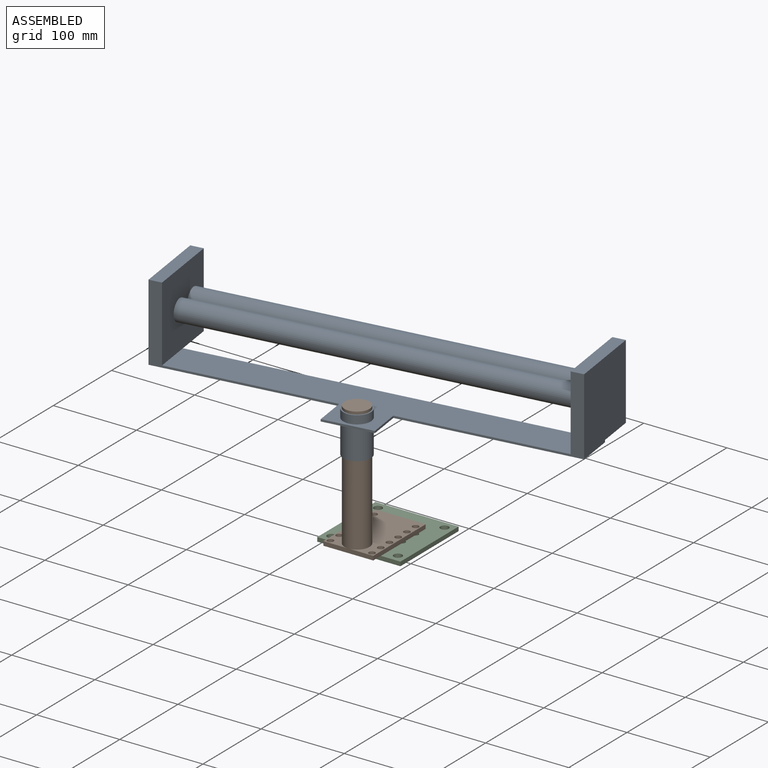
[diagram: assembled view]
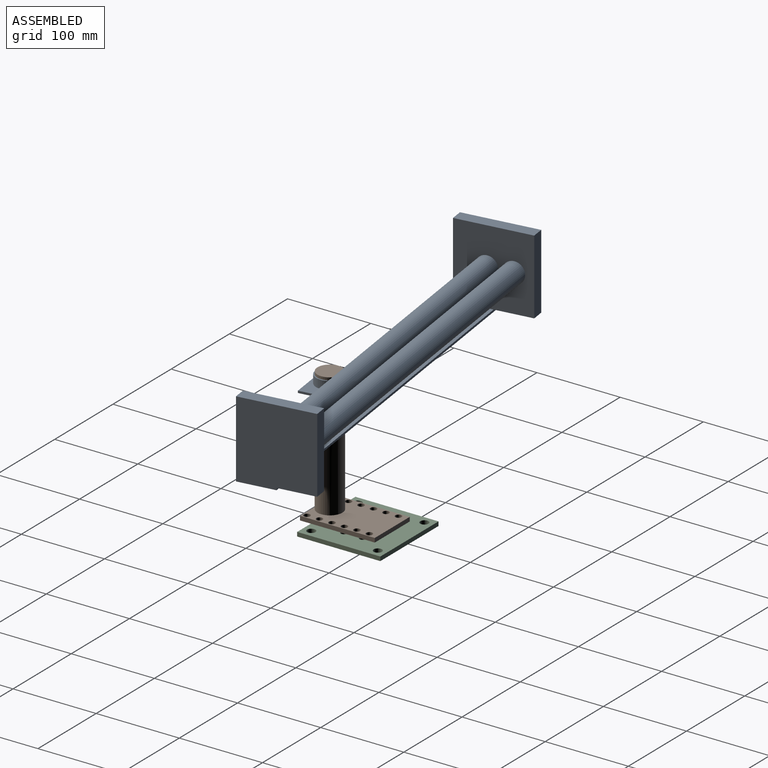
[diagram: assembled view, second angle]
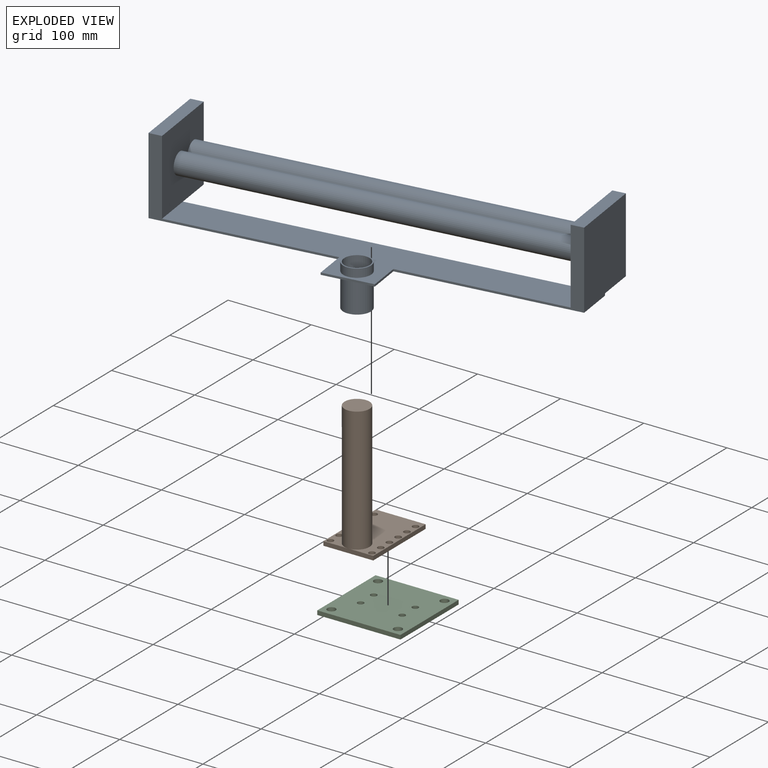
[diagram: exploded view]
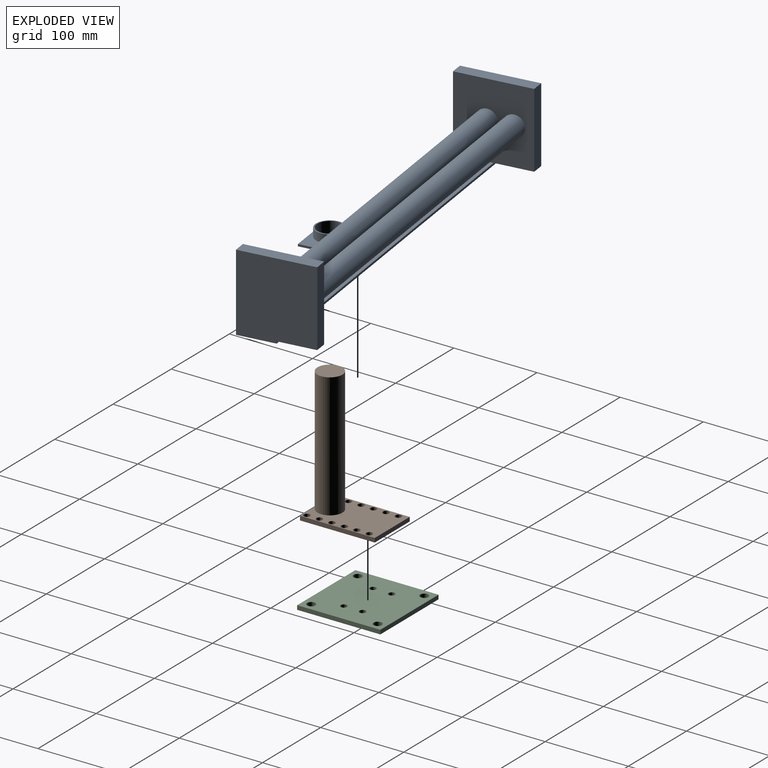
[diagram: exploded view, second angle]
ASSEMBLY  parts=3 mates=2
PART A: 25 faces, bbox 482.6x130x130 mm
  f0: plane 452.6x85mm, normal (0,0,1), area 21911.7mm2, adj f2,f3,f4,f5,f6,f9,f11,f15
  f1: plane 92.5x90mm, normal (-1,0,0), area 8212.5mm2, adj f2,f9,f10,f12,f13,f14
  f2: plane 211.3x92.5mm, normal (0,-1,0), area 1878.2mm2, adj f0,f1,f3,f10,f11,f13
  f3: plane 40x2.5mm, normal (-1,0,0), area 100mm2, adj f0,f2,f4,f10
  f4: plane 60x2.5mm, normal (0,-1,0), area 150mm2, adj f0,f3,f5,f10
  f5: plane 40x2.5mm, normal (1,0,0), area 100mm2, adj f0,f4,f6,f10
  f6: plane 211.3x92.5mm, normal (0,-1,0), area 1878.2mm2, adj f0,f5,f7,f10,f15,f17
  f7: plane 92.5x90mm, normal (1,0,0), area 8212.5mm2, adj f6,f9,f10,f16,f17,f18
  f8: cylinder r=15mm len=50mm, axis (0,0,-1), area 4712.4mm2, adj f22,f24
  f9: plane 482.6x2.5mm, normal (0,1,0), area 1206.5mm2, adj f0,f1,f7,f10,f14,f18
  f10: plane 482.6x85mm, normal (0,0,-1), area 23261.7mm2, adj f1,f2,f3,f4,f5,f6,f7,f9
  f11: plane 90x90mm, normal (1,0,0), area 7118.3mm2, adj f0,f2,f12,f13,f14,f19,f20
  f12: plane 90x15mm, normal (0,1,0), area 1350mm2, adj f1,f11,f13,f14
  f13: plane 90x15mm, normal (0,0,1), area 1350mm2, adj f1,f2,f11,f12
  f14: plane 45x15mm, normal (0,0,-1), area 675mm2, adj f1,f9,f11,f12
  f15: plane 90x90mm, normal (-1,0,0), area 7118.3mm2, adj f0,f6,f16,f17,f18,f19,f20
  f16: plane 90x15mm, normal (0,1,0), area 1350mm2, adj f7,f15,f17,f18
  f17: plane 90x15mm, normal (0,0,1), area 1350mm2, adj f6,f7,f15,f16
  f18: plane 45x15mm, normal (0,0,-1), area 675mm2, adj f7,f9,f15,f16
  f19: cylinder r=12.5mm len=452.6mm, axis (-1,0,0), area 35547.1mm2, adj f11,f15
  f20: cylinder r=12.5mm len=452.6mm, axis (-1,0,0), area 35547.1mm2, adj f11,f15
  f21: cylinder r=16.5mm len=33mm, axis (0,0,-1), area 1036.7mm2, adj f0,f22
  f22: plane 33x33mm, normal (0,0,1), area 148.4mm2, adj f8,f21
  f23: cylinder r=16.5mm len=37.5mm, axis (0,0,1), area 3887.7mm2, adj f10,f24
  f24: plane 33x33mm, normal (0,0,-1), area 148.4mm2, adj f8,f23
PART B: 20 faces, bbox 60x90x155 mm
  f0: cylinder r=15mm len=150mm, axis (0,0,1), area 14137.2mm2, adj f1,f19
  f1: plane 30x30mm, normal (0,0,1), area 706.9mm2, adj f0
  f2: plane 90x5mm, normal (1,0,0), area 450mm2, adj f3,f17,f18,f19
  f3: plane 60x5mm, normal (0,-1,0), area 300mm2, adj f2,f4,f18,f19
  f4: plane 90x5mm, normal (-1,0,0), area 450mm2, adj f3,f17,f18,f19
  f5: cylinder r=3.75mm len=7.5mm, axis (0,0,1), area 117.8mm2, adj f18,f19
  f6: cylinder r=3.75mm len=7.5mm, axis (0,0,1), area 117.8mm2, adj f18,f19
  f7: cylinder r=3.75mm len=7.5mm, axis (0,0,1), area 117.8mm2, adj f18,f19
  f8: cylinder r=3.75mm len=7.5mm, axis (0,0,1), area 117.8mm2, adj f18,f19
  f9: cylinder r=3.75mm len=7.5mm, axis (0,0,1), area 117.8mm2, adj f18,f19
  f10: cylinder r=3.75mm len=7.5mm, axis (0,0,1), area 117.8mm2, adj f18,f19
  f11: cylinder r=3.75mm len=7.5mm, axis (0,0,1), area 117.8mm2, adj f18,f19
  f12: cylinder r=3.75mm len=7.5mm, axis (0,0,1), area 117.8mm2, adj f18,f19
  f13: cylinder r=3.75mm len=7.5mm, axis (0,0,1), area 117.8mm2, adj f18,f19
  f14: cylinder r=3.75mm len=7.5mm, axis (0,0,1), area 117.8mm2, adj f18,f19
  f15: cylinder r=3.75mm len=7.5mm, axis (0,0,1), area 117.8mm2, adj f18,f19
  f16: cylinder r=3.75mm len=7.5mm, axis (0,0,1), area 117.8mm2, adj f18,f19
  f17: plane 60x5mm, normal (0,1,0), area 300mm2, adj f2,f4,f18,f19
  f18: plane 90x60mm, normal (0,0,-1), area 4869.9mm2, adj f2,f3,f4,f5,f6,f7,f8,f9
  f19: plane 90x60mm, normal (0,0,1), area 4163mm2, adj f0,f2,f3,f4,f5,f6,f7,f8
PART C: 14 faces, bbox 100x100x5 mm
  f0: plane 100x5mm, normal (0,1,0), area 500mm2, adj f1,f11,f12,f13
  f1: plane 100x5mm, normal (-1,0,0), area 500mm2, adj f0,f2,f12,f13
  f2: plane 100x5mm, normal (0,-1,0), area 500mm2, adj f1,f11,f12,f13
  f3: cylinder r=3.75mm len=7.5mm, axis (0,0,-1), area 117.8mm2, adj f12,f13
  f4: cylinder r=3.75mm len=7.5mm, axis (0,0,-1), area 117.8mm2, adj f12,f13
  f5: cylinder r=3.75mm len=7.5mm, axis (0,0,-1), area 117.8mm2, adj f12,f13
  f6: cylinder r=5mm len=10mm, axis (0,0,-1), area 157.1mm2, adj f12,f13
  f7: cylinder r=5mm len=10mm, axis (0,0,-1), area 157.1mm2, adj f12,f13
  f8: cylinder r=5mm len=10mm, axis (0,0,-1), area 157.1mm2, adj f12,f13
  f9: cylinder r=5mm len=10mm, axis (0,0,-1), area 157.1mm2, adj f12,f13
  f10: cylinder r=3.75mm len=7.5mm, axis (0,0,-1), area 117.8mm2, adj f12,f13
  f11: plane 100x5mm, normal (1,0,0), area 500mm2, adj f0,f2,f12,f13
  f12: plane 100x100mm, normal (0,0,1), area 9509.1mm2, adj f0,f1,f2,f3,f4,f5,f6,f7
  f13: plane 100x100mm, normal (0,0,-1), area 9509.1mm2, adj f0,f1,f2,f3,f4,f5,f6,f7
PLACE A rot(axis=(0,0,1),7.8deg) t=(-55.72,-21.77,77.98)mm
PLACE B t=(-551.95,-21.38,93.71)mm
PLACE C t=(-993.4,26.76,-66.29)mm fixed
MATE planar C.f12 <-> B.f18  axis (0,0,1) through (-46.45,-15.74,-61.29)mm
MATE cylindrical A.f8 <-> B.f0  axis (0,0,-1) through (-49.96,-63.88,65.48)mm
